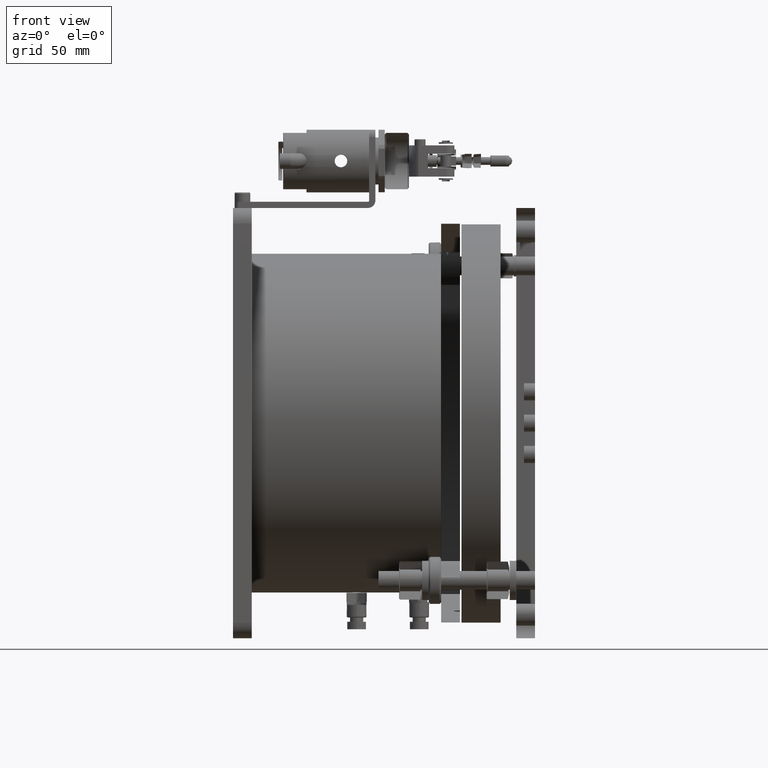
[diagram: clean part render]
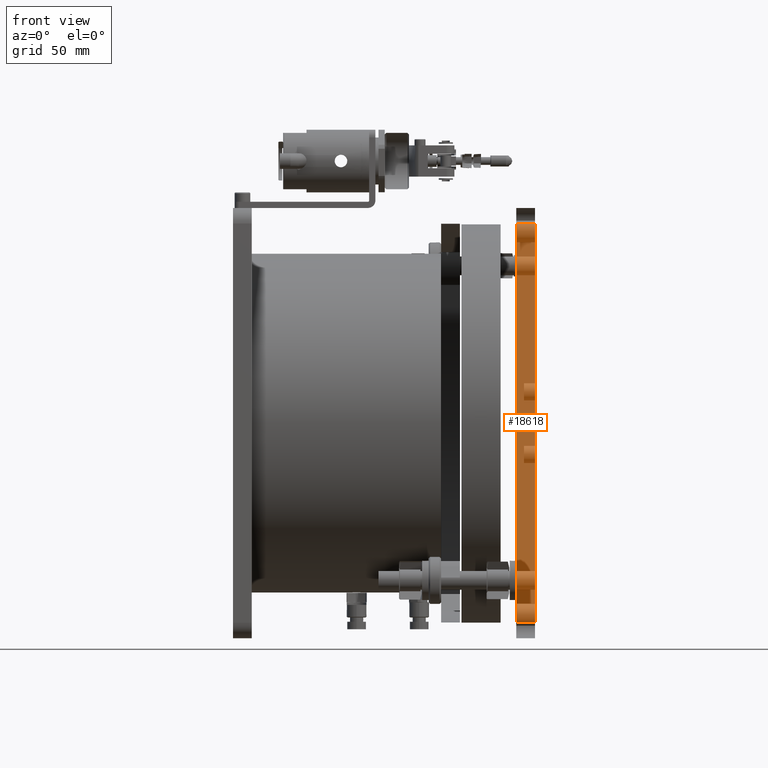
[diagram: same view with one face highlighted and labeled with its STEP entity id]
A machine part, front view. The second image highlights one B-rep face of the part: STEP entity #18618.
In plain terms, the highlighted planar face has unit normal (-0, 1, 0).
Its self-contained STEP definition (entity closure, byte-faithful):
#172 = EDGE_CURVE ( 'NONE', #18632, #5377, #20006, .T. ) ;
#1453 = VECTOR ( 'NONE', #20569, 1000.000000000000000 ) ;
#3266 = CARTESIAN_POINT ( 'NONE',  ( 748.2532529064096707, -148.5730653247215685, 298.5684939441189840 ) ) ;
#3398 = CARTESIAN_POINT ( 'NONE',  ( 760.2532529064096707, -148.5730653247215969, 553.5684939441190409 ) ) ;
#4280 = CARTESIAN_POINT ( 'NONE',  ( 748.2532529064096707, -148.5730653247215969, 553.5684939441190409 ) ) ;
#4976 = DIRECTION ( 'NONE',  ( 0.000000000000000000, -5.551115123125781470E-17, 1.000000000000000000 ) ) ;
#5253 = ORIENTED_EDGE ( 'NONE', *, *, #18616, .T. ) ;
#5377 = VERTEX_POINT ( 'NONE', #21705 ) ;
#6056 = VECTOR ( 'NONE', #18371, 1000.000000000000000 ) ;
#6962 = LINE ( 'NONE', #23236, #24039 ) ;
#8979 = CARTESIAN_POINT ( 'NONE',  ( 748.2532529064096707, -148.5730653247215969, 553.5684939441190409 ) ) ;
#9299 = VECTOR ( 'NONE', #22087, 1000.000000000000000 ) ;
#10020 = CARTESIAN_POINT ( 'NONE',  ( 760.2532529064096707, -148.5730653247215685, 288.5684939441189840 ) ) ;
#10842 = EDGE_LOOP ( 'NONE', ( #23732, #12400, #5253, #23894 ) ) ;
#12400 = ORIENTED_EDGE ( 'NONE', *, *, #172, .T. ) ;
#12727 = AXIS2_PLACEMENT_3D ( 'NONE', #19434, #21388, #4976 ) ;
#17087 = FACE_OUTER_BOUND ( 'NONE', #10842, .T. ) ;
#18371 = DIRECTION ( 'NONE',  ( 5.246141952597420296E-18, 9.888683327545269338E-35, -1.000000000000000000 ) ) ;
#18616 = EDGE_CURVE ( 'NONE', #5377, #18726, #6962, .T. ) ;
#18618 = ADVANCED_FACE ( 'NONE', ( #17087 ), #25324, .T. ) ;
#18632 = VERTEX_POINT ( 'NONE', #3398 ) ;
#18726 = VERTEX_POINT ( 'NONE', #3266 ) ;
#19168 = DIRECTION ( 'NONE',  ( -1.000000000000000000, -1.884943910572088157E-17, -1.046354064822056978E-33 ) ) ;
#19434 = CARTESIAN_POINT ( 'NONE',  ( 748.2532529064096707, -148.5730653247215685, 288.5684939441189840 ) ) ;
#19607 = LINE ( 'NONE', #25615, #6056 ) ;
#19922 = EDGE_CURVE ( 'NONE', #25433, #18726, #19607, .T. ) ;
#20006 = LINE ( 'NONE', #10020, #9299 ) ;
#20569 = DIRECTION ( 'NONE',  ( 1.000000000000000000, 1.884943910572088157E-17, 1.046354064822056978E-33 ) ) ;
#21388 = DIRECTION ( 'NONE',  ( -1.884943910572088157E-17, 1.000000000000000000, 5.551115123125781470E-17 ) ) ;
#21705 = CARTESIAN_POINT ( 'NONE',  ( 760.2532529064096707, -148.5730653247215685, 298.5684939441189840 ) ) ;
#22087 = DIRECTION ( 'NONE',  ( -0.000000000000000000, 5.551115123125781470E-17, -1.000000000000000000 ) ) ;
#22532 = LINE ( 'NONE', #4280, #1453 ) ;
#23236 = CARTESIAN_POINT ( 'NONE',  ( 748.2532529064096707, -148.5730653247215685, 298.5684939441189840 ) ) ;
#23732 = ORIENTED_EDGE ( 'NONE', *, *, #24249, .T. ) ;
#23894 = ORIENTED_EDGE ( 'NONE', *, *, #19922, .F. ) ;
#24039 = VECTOR ( 'NONE', #19168, 1000.000000000000000 ) ;
#24249 = EDGE_CURVE ( 'NONE', #25433, #18632, #22532, .T. ) ;
#25324 = PLANE ( 'NONE',  #12727 ) ;
#25433 = VERTEX_POINT ( 'NONE', #8979 ) ;
#25615 = CARTESIAN_POINT ( 'NONE',  ( 748.2532529064096707, -148.5730653247215685, 426.0684939441189272 ) ) ;